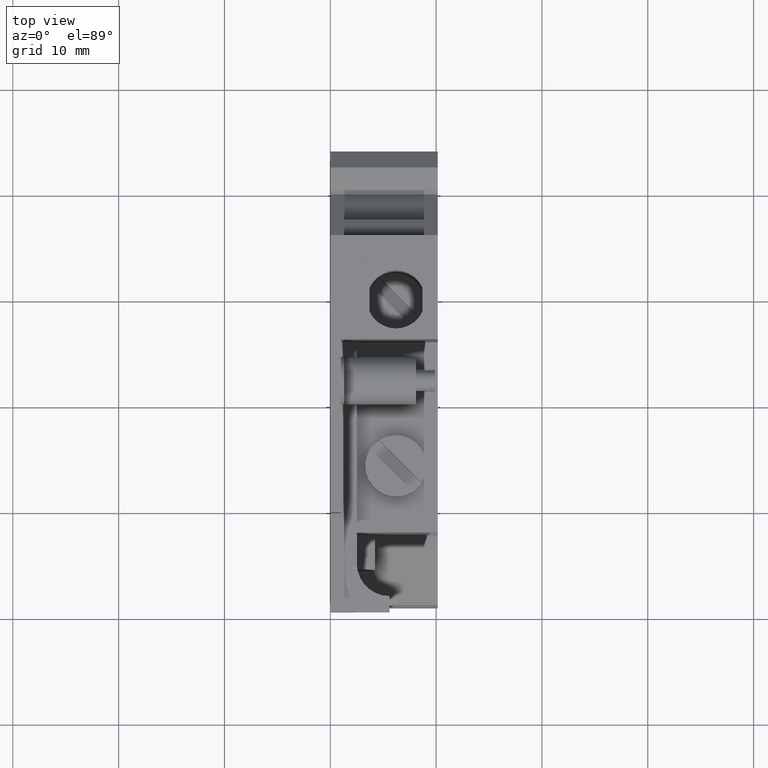
[diagram: clean part render]
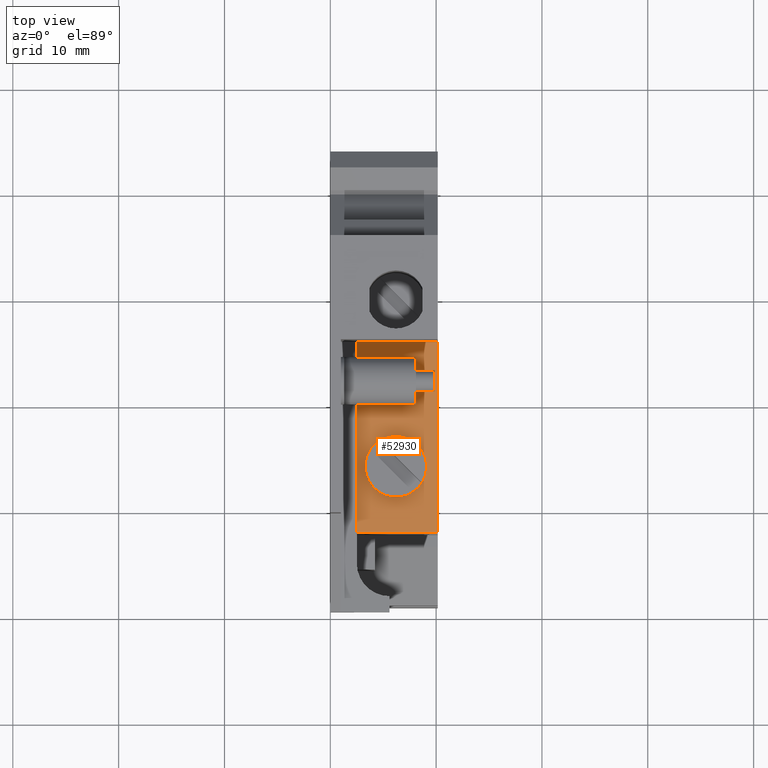
[diagram: same view with one face highlighted and labeled with its STEP entity id]
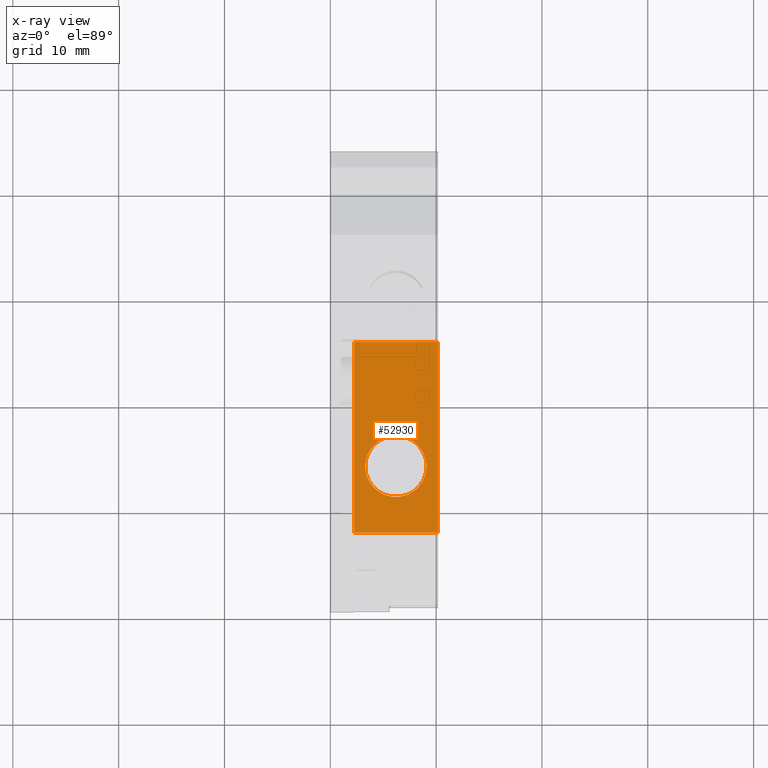
[diagram: x-ray of the same camera — body ghosted, the highlighted face saturated]
A machine part, top view. The second image highlights one B-rep face of the part: STEP entity #52930.
The next image is the same camera in x-ray: the body ghosted, the highlighted face saturated — about 0% of this face is hidden behind the body in this view.
In plain terms, the highlighted planar face has unit normal (0, 0, -1).
Its self-contained STEP definition (entity closure, byte-faithful):
#24360=CARTESIAN_POINT('',(-14.2224276820055,30.5932434217325,22.15));
#24370=VERTEX_POINT('',#24360);
#24400=CARTESIAN_POINT('',(-14.2224276820055,30.5932434217325,12.));
#24410=DIRECTION('',(0.,0.,-1.));
#24420=VECTOR('',#24410,1.);
#24430=LINE('',#24400,#24420);
#24440=CARTESIAN_POINT('',(-14.2224276820055,30.5932434217325,14.25));
#24450=VERTEX_POINT('',#24440);
#24460=EDGE_CURVE('',#24370,#24450,#24430,.T.);
#48290=CARTESIAN_POINT('',(-6.22364864864863,30.5932434217325,14.25));
#48300=DIRECTION('',(1.,0.,0.));
#48310=VECTOR('',#48300,1.);
#48320=LINE('',#48290,#48310);
#48330=CARTESIAN_POINT('',(-32.2224276820055,30.5932434217325,14.25));
#48340=VERTEX_POINT('',#48330);
#48350=EDGE_CURVE('',#48340,#24450,#48320,.T.);
#52550=CARTESIAN_POINT('',(-32.2224276820055,30.5932434217325,19.35));
#52560=DIRECTION('',(0.,-1.,0.));
#52570=DIRECTION('',(0.,0.,-1.));
#52580=AXIS2_PLACEMENT_3D('',#52550,#52560,#52570);
#52590=PLANE('',#52580);
#52600=CARTESIAN_POINT('',(-6.22364864864863,30.5932434217325,22.15));
#52610=DIRECTION('',(1.,0.,0.));
#52620=VECTOR('',#52610,1.);
#52630=LINE('',#52600,#52620);
#52640=CARTESIAN_POINT('',(-32.2224276820055,30.5932434217325,22.15));
#52650=VERTEX_POINT('',#52640);
#52660=EDGE_CURVE('',#52650,#24370,#52630,.T.);
#52670=ORIENTED_EDGE('',*,*,#52660,.T.);
#52680=CARTESIAN_POINT('',(-32.2224276820055,30.5932434217325,12.));
#52690=DIRECTION('',(0.,0.,-1.));
#52700=VECTOR('',#52690,1.);
#52710=LINE('',#52680,#52700);
#52720=EDGE_CURVE('',#52650,#48340,#52710,.T.);
#52730=ORIENTED_EDGE('',*,*,#52720,.F.);
#52740=ORIENTED_EDGE('',*,*,#48350,.F.);
#52750=ORIENTED_EDGE('',*,*,#24460,.T.);
#52760=EDGE_LOOP('',(#52750,#52740,#52730,#52670));
#52770=FACE_OUTER_BOUND('',#52760,.T.);
#52780=CARTESIAN_POINT('',(-25.9724276820055,30.5932434217325,18.2));
#52790=DIRECTION('',(0.,1.,0.));
#52800=DIRECTION('',(0.,0.,1.));
#52810=AXIS2_PLACEMENT_3D('',#52780,#52790,#52800);
#52820=CIRCLE('',#52810,2.9);
#52830=CARTESIAN_POINT('',(-25.9724276820055,30.5932434217325,21.1));
#52840=VERTEX_POINT('',#52830);
#52850=CARTESIAN_POINT('',(-25.9724276820055,30.5932434217325,15.3));
#52860=VERTEX_POINT('',#52850);
#52870=EDGE_CURVE('',#52840,#52860,#52820,.T.);
#52880=ORIENTED_EDGE('',*,*,#52870,.F.);
#52890=EDGE_CURVE('',#52860,#52840,#52820,.T.);
#52900=ORIENTED_EDGE('',*,*,#52890,.F.);
#52910=EDGE_LOOP('',(#52900,#52880));
#52920=FACE_BOUND('',#52910,.T.);
#52930=ADVANCED_FACE('',(#52770,#52920),#52590,.F.);